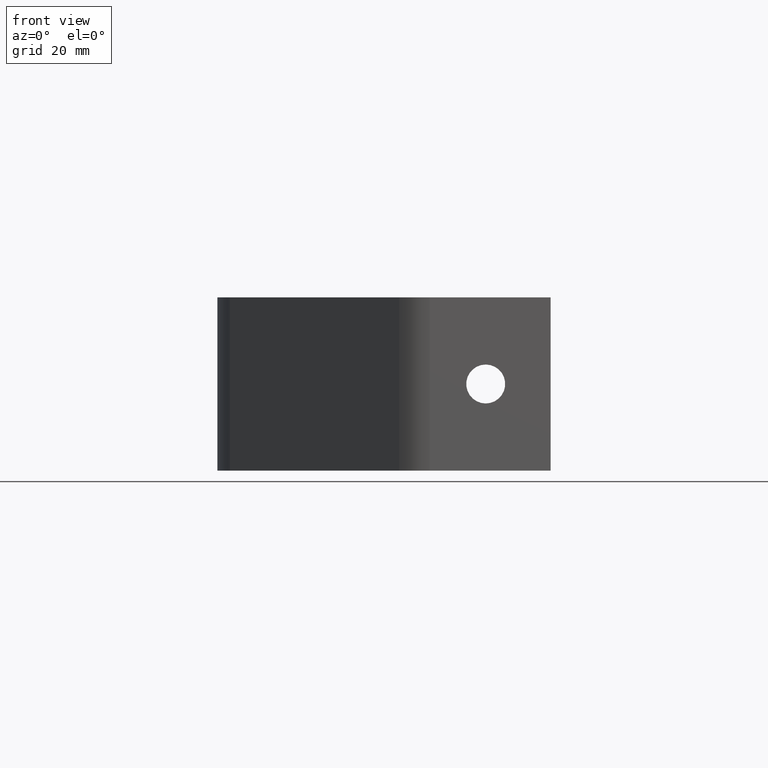
[diagram: clean part render]
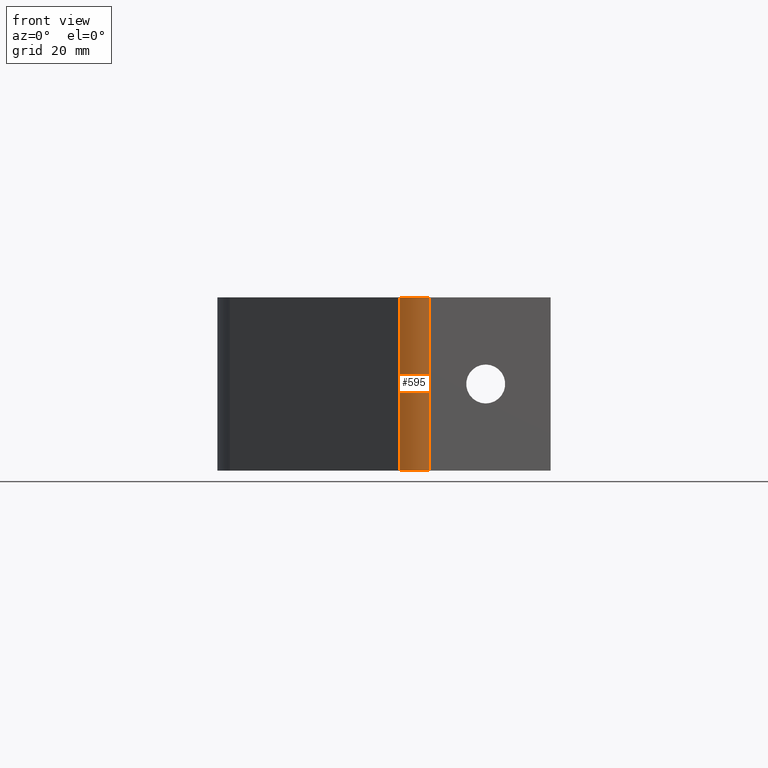
[diagram: same view with one face highlighted and labeled with its STEP entity id]
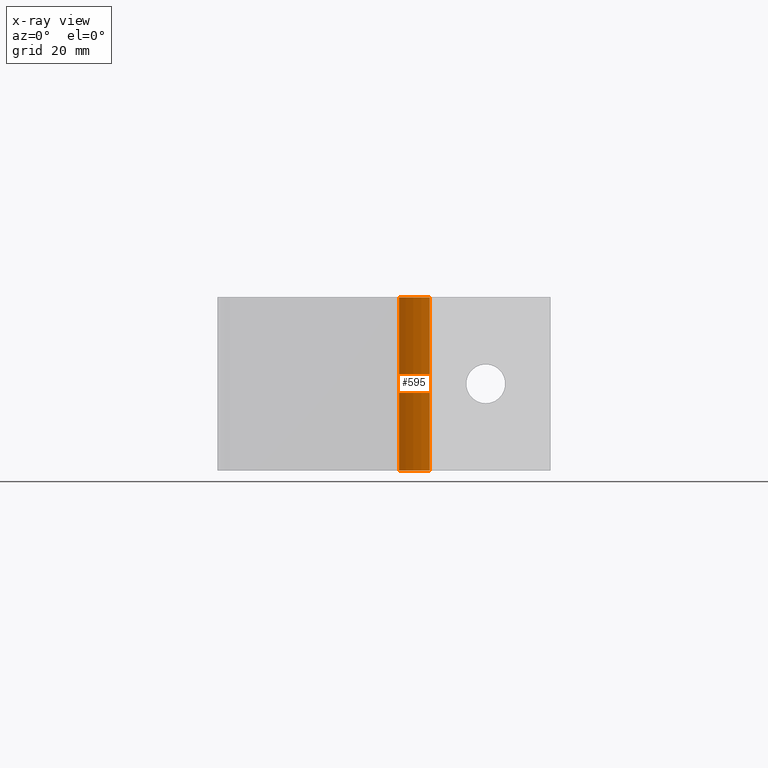
[diagram: x-ray of the same camera — body ghosted, the highlighted face saturated]
A machine part, front view. The second image highlights one B-rep face of the part: STEP entity #595.
The next image is the same camera in x-ray: the body ghosted, the highlighted face saturated — about 0% of this face is hidden behind the body in this view.
In plain terms, the highlighted cylindrical surface (partial cylindrical patch) has radius 10 mm, axis along (0, -0, -1).
Its self-contained STEP definition (entity closure, byte-faithful):
#7 = VERTEX_POINT ( 'NONE', #545 ) ;
#8 = VERTEX_POINT ( 'NONE', #546 ) ;
#20 = VERTEX_POINT ( 'NONE', #225 ) ;
#22 = VERTEX_POINT ( 'NONE', #227 ) ;
#33 = CARTESIAN_POINT ( 'NONE',  ( -35.00000000140599400, 2.928932189675031300, 20.00000000000000000 ) ) ;
#34 = DIRECTION ( 'NONE',  ( -0.0000000000000000000, -0.0000000000000000000, 1.000000000000000000 ) ) ;
#46 = CARTESIAN_POINT ( 'NONE',  ( -27.92893218799999700, 0.0000000000000000000, 20.00000000000000000 ) ) ;
#47 = DIRECTION ( 'NONE',  ( 0.0000000000000000000, 0.0000000000000000000, 1.000000000000000000 ) ) ;
#48 = CARTESIAN_POINT ( 'NONE',  ( -27.92893218799999700, 10.00000000000000000, 40.00000000000000000 ) ) ;
#49 = DIRECTION ( 'NONE',  ( 0.0000000000000000000, -3.469446951953610700E-016, -1.000000000000000000 ) ) ;
#50 = AXIS2_PLACEMENT_3D ( 'NONE', #48, #49, #697 ) ;
#105 = AXIS2_PLACEMENT_3D ( 'NONE', #669, #670, #671 ) ;
#117 = AXIS2_PLACEMENT_3D ( 'NONE', #715, #716, #717 ) ;
#131 = EDGE_CURVE ( 'NONE', #8, #7, #375, .T. ) ;
#137 = EDGE_CURVE ( 'NONE', #20, #22, #364, .T. ) ;
#138 = EDGE_CURVE ( 'NONE', #22, #7, #359, .T. ) ;
#147 = EDGE_CURVE ( 'NONE', #20, #8, #340, .T. ) ;
#225 = CARTESIAN_POINT ( 'NONE',  ( -27.92893218799999400, 1.734723475976807100E-015, -2.602085213965215400E-015 ) ) ;
#227 = CARTESIAN_POINT ( 'NONE',  ( -27.92893218799999700, 1.734723475976807100E-015, 40.00000000000000700 ) ) ;
#280 = CYLINDRICAL_SURFACE ( 'NONE', #105, 10.00000000000001100 ) ;
#290 = FACE_OUTER_BOUND ( 'NONE', #300, .T. ) ;
#300 = EDGE_LOOP ( 'NONE', ( #421, #424, #425, #426 ) ) ;
#340 = CIRCLE ( 'NONE', #117, 10.00000000000001100 ) ;
#359 = CIRCLE ( 'NONE', #50, 10.00000000000001100 ) ;
#362 = VECTOR ( 'NONE', #47, 1000.000000000000000 ) ;
#364 = LINE ( 'NONE', #46, #362 ) ;
#373 = VECTOR ( 'NONE', #34, 1000.000000000000000 ) ;
#375 = LINE ( 'NONE', #33, #373 ) ;
#421 = ORIENTED_EDGE ( 'NONE', *, *, #131, .F. ) ;
#424 = ORIENTED_EDGE ( 'NONE', *, *, #147, .F. ) ;
#425 = ORIENTED_EDGE ( 'NONE', *, *, #137, .T. ) ;
#426 = ORIENTED_EDGE ( 'NONE', *, *, #138, .T. ) ;
#545 = CARTESIAN_POINT ( 'NONE',  ( -35.00000000070299700, 2.928932188837515900, 40.00000000000000700 ) ) ;
#546 = CARTESIAN_POINT ( 'NONE',  ( -35.00000002122676800, 2.928932167861288100, -3.977535687282798100E-015 ) ) ;
#595 = ADVANCED_FACE ( 'NONE', ( #290 ), #280, .T. ) ;
#669 = CARTESIAN_POINT ( 'NONE',  ( -27.92893218799999700, 10.00000000000000000, 40.00000000000000000 ) ) ;
#670 = DIRECTION ( 'NONE',  ( 0.0000000000000000000, -3.469446951953610700E-016, -1.000000000000000000 ) ) ;
#671 = DIRECTION ( 'NONE',  ( 0.0000000000000000000, 1.000000000000000000, -6.938893903907221500E-016 ) ) ;
#697 = DIRECTION ( 'NONE',  ( 0.0000000000000000000, 1.000000000000000000, -6.938893903907221500E-016 ) ) ;
#715 = CARTESIAN_POINT ( 'NONE',  ( -27.92893218799999700, 9.999999999999985800, -6.938893903907228400E-015 ) ) ;
#716 = DIRECTION ( 'NONE',  ( 0.0000000000000000000, -3.469446951953610700E-016, -1.000000000000000000 ) ) ;
#717 = DIRECTION ( 'NONE',  ( 0.0000000000000000000, 1.000000000000000000, -3.469446951953610700E-016 ) ) ;